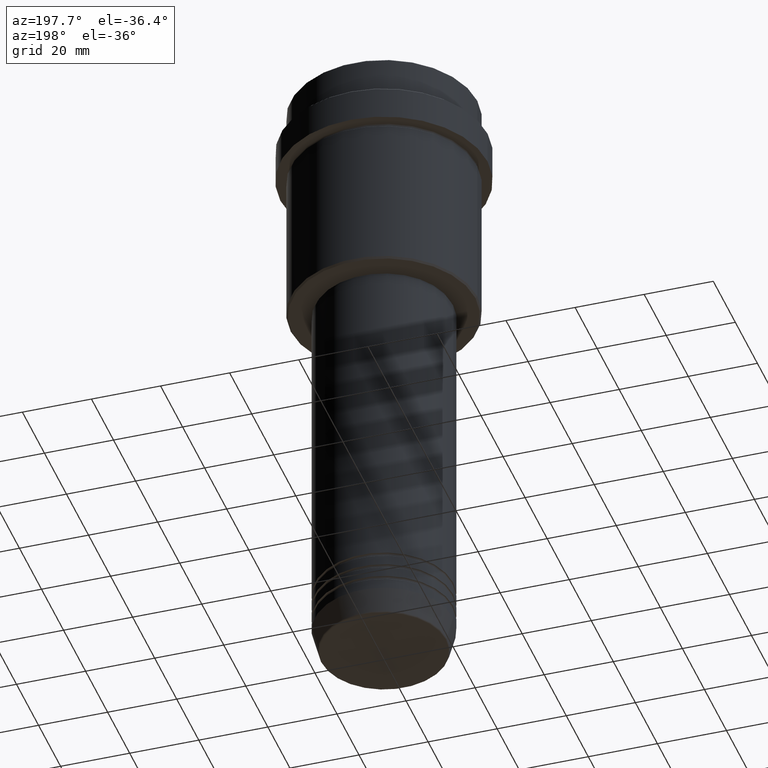
[diagram: clean part render]
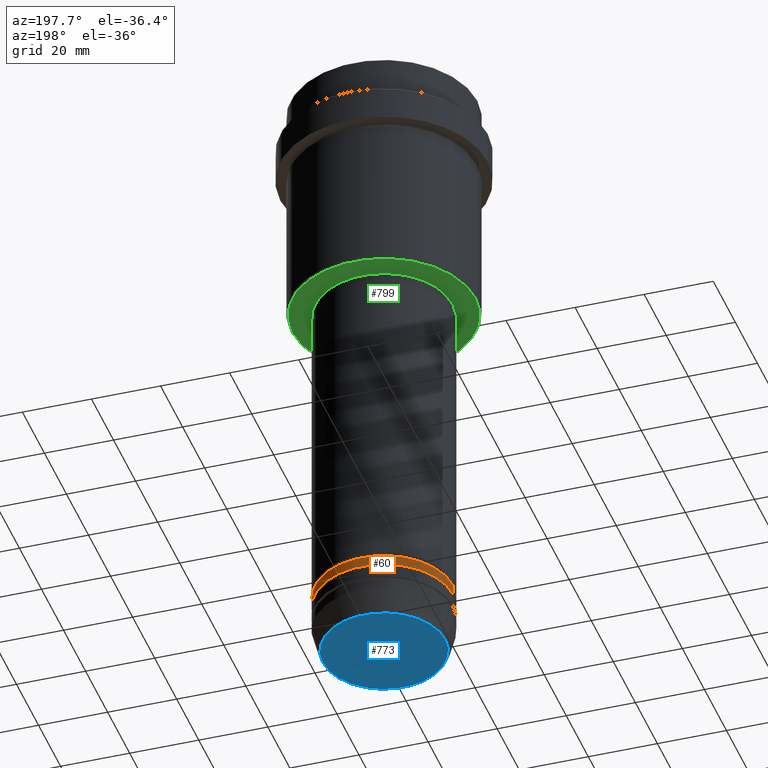
[diagram: same view with three faces highlighted in distinct colors, each labeled with its STEP entity id]
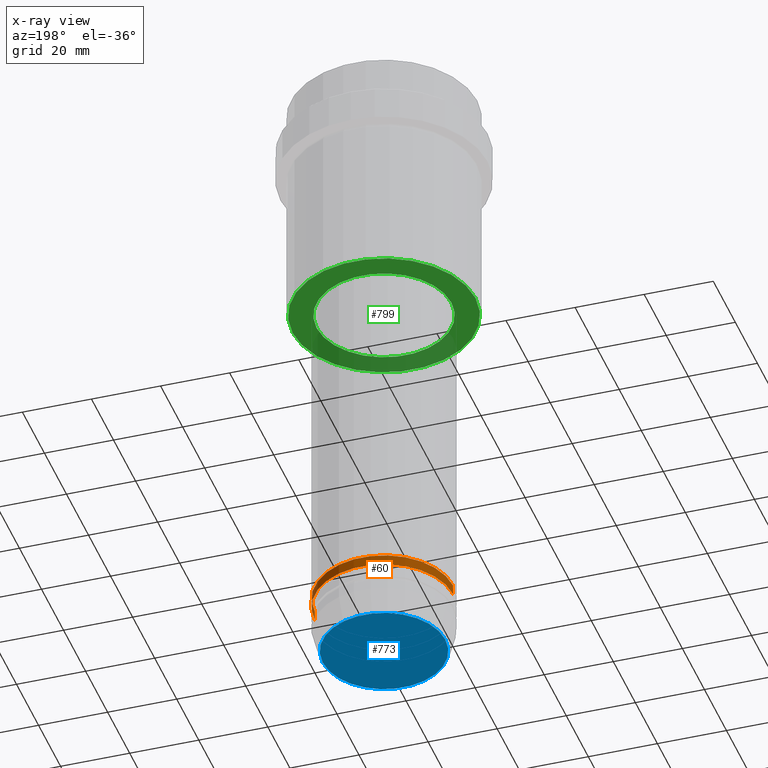
[diagram: x-ray of the same camera — body ghosted, the three highlighted faces saturated]
A machine part, auxiliary view with three faces highlighted in distinct colors.
The next image is the same camera in x-ray (body ghosted, the three faces saturated) — at least one of them is partly hidden behind the body in this view.
Their STEP definitions:

[orange] entity #60 — the highlighted cylindrical surface (partial cylindrical patch) has radius 20 mm, axis along (-0, -0, 1).
#60 = ADVANCED_FACE ( 'NONE', ( #275 ), #1250, .T. ) ;
#86 = ORIENTED_EDGE ( 'NONE', *, *, #923, .T. ) ;
#150 = DIRECTION ( 'NONE',  ( -0.000000000000000000, -0.000000000000000000, 1.000000000000000000 ) ) ;
#207 = EDGE_LOOP ( 'NONE', ( #86, #1096, #550, #602 ) ) ;
#275 = FACE_OUTER_BOUND ( 'NONE', #207, .T. ) ;
#276 = EDGE_CURVE ( 'NONE', #677, #1179, #365, .T. ) ;
#280 = DIRECTION ( 'NONE',  ( -0.000000000000000000, -0.000000000000000000, 1.000000000000000000 ) ) ;
#328 = EDGE_CURVE ( 'NONE', #390, #1001, #834, .T. ) ;
#360 = CARTESIAN_POINT ( 'NONE',  ( -20.00000000000000000, 2.449293598294706513E-15, 0.000000000000000000 ) ) ;
#365 = LINE ( 'NONE', #1257, #1236 ) ;
#390 = VERTEX_POINT ( 'NONE', #756 ) ;
#392 = DIRECTION ( 'NONE',  ( 1.000000000000000000, 0.000000000000000000, 0.000000000000000000 ) ) ;
#448 = VECTOR ( 'NONE', #1263, 1000.000000000000000 ) ;
#479 = DIRECTION ( 'NONE',  ( -0.000000000000000000, -0.000000000000000000, 1.000000000000000000 ) ) ;
#550 = ORIENTED_EDGE ( 'NONE', *, *, #911, .F. ) ;
#580 = CIRCLE ( 'NONE', #1146, 20.00000000000000000 ) ;
#586 = CARTESIAN_POINT ( 'NONE',  ( 0.000000000000000000, 0.000000000000000000, 0.000000000000000000 ) ) ;
#593 = CARTESIAN_POINT ( 'NONE',  ( 20.00000000000000000, 0.000000000000000000, -167.9999999999999147 ) ) ;
#602 = ORIENTED_EDGE ( 'NONE', *, *, #276, .F. ) ;
#620 = CARTESIAN_POINT ( 'NONE',  ( 0.000000000000000000, 0.000000000000000000, -164.9999999999999147 ) ) ;
#634 = DIRECTION ( 'NONE',  ( -0.000000000000000000, -0.000000000000000000, 1.000000000000000000 ) ) ;
#662 = CARTESIAN_POINT ( 'NONE',  ( -20.00000000000000000, 2.449293598294706513E-15, -164.9999999999999147 ) ) ;
#677 = VERTEX_POINT ( 'NONE', #593 ) ;
#707 = AXIS2_PLACEMENT_3D ( 'NONE', #586, #150, #1036 ) ;
#713 = AXIS2_PLACEMENT_3D ( 'NONE', #749, #634, #392 ) ;
#749 = CARTESIAN_POINT ( 'NONE',  ( 0.000000000000000000, 0.000000000000000000, -167.9999999999999147 ) ) ;
#756 = CARTESIAN_POINT ( 'NONE',  ( -20.00000000000000000, 2.449293598294706513E-15, -167.9999999999999147 ) ) ;
#834 = LINE ( 'NONE', #360, #448 ) ;
#902 = CARTESIAN_POINT ( 'NONE',  ( 20.00000000000000000, 0.000000000000000000, -164.9999999999999147 ) ) ;
#911 = EDGE_CURVE ( 'NONE', #1179, #1001, #580, .T. ) ;
#923 = EDGE_CURVE ( 'NONE', #677, #390, #1332, .T. ) ;
#938 = DIRECTION ( 'NONE',  ( 1.000000000000000000, 0.000000000000000000, 0.000000000000000000 ) ) ;
#1001 = VERTEX_POINT ( 'NONE', #662 ) ;
#1036 = DIRECTION ( 'NONE',  ( 1.000000000000000000, 0.000000000000000000, 0.000000000000000000 ) ) ;
#1096 = ORIENTED_EDGE ( 'NONE', *, *, #328, .T. ) ;
#1146 = AXIS2_PLACEMENT_3D ( 'NONE', #620, #280, #938 ) ;
#1179 = VERTEX_POINT ( 'NONE', #902 ) ;
#1236 = VECTOR ( 'NONE', #479, 1000.000000000000000 ) ;
#1250 = CYLINDRICAL_SURFACE ( 'NONE', #707, 20.00000000000000000 ) ;
#1257 = CARTESIAN_POINT ( 'NONE',  ( 20.00000000000000000, 0.000000000000000000, 0.000000000000000000 ) ) ;
#1263 = DIRECTION ( 'NONE',  ( -0.000000000000000000, -0.000000000000000000, 1.000000000000000000 ) ) ;
#1332 = CIRCLE ( 'NONE', #713, 20.00000000000000000 ) ;

[blue] entity #773 — the highlighted planar face has unit normal (0, -0, 1).
#71 = VERTEX_POINT ( 'NONE', #703 ) ;
#498 = CARTESIAN_POINT ( 'NONE',  ( 0.000000000000000000, 0.000000000000000000, -183.0000000000000000 ) ) ;
#519 = ORIENTED_EDGE ( 'NONE', *, *, #623, .T. ) ;
#526 = PLANE ( 'NONE',  #810 ) ;
#584 = CARTESIAN_POINT ( 'NONE',  ( 0.000000000000000000, 0.000000000000000000, -183.0000000000000000 ) ) ;
#603 = DIRECTION ( 'NONE',  ( 0.000000000000000000, 0.000000000000000000, -1.000000000000000000 ) ) ;
#623 = EDGE_CURVE ( 'NONE', #785, #71, #629, .T. ) ;
#629 = CIRCLE ( 'NONE', #1331, 17.74069215899266183 ) ;
#703 = CARTESIAN_POINT ( 'NONE',  ( 17.74069215899266183, 0.000000000000000000, -183.0000000000000000 ) ) ;
#721 = DIRECTION ( 'NONE',  ( 0.000000000000000000, -0.000000000000000000, 1.000000000000000000 ) ) ;
#736 = DIRECTION ( 'NONE',  ( 0.000000000000000000, 0.000000000000000000, -1.000000000000000000 ) ) ;
#750 = FACE_OUTER_BOUND ( 'NONE', #1276, .T. ) ;
#771 = CARTESIAN_POINT ( 'NONE',  ( 0.000000000000000000, 0.000000000000000000, -183.0000000000000000 ) ) ;
#773 = ADVANCED_FACE ( 'NONE', ( #750 ), #526, .F. ) ;
#785 = VERTEX_POINT ( 'NONE', #961 ) ;
#787 = CIRCLE ( 'NONE', #897, 17.74069215899266183 ) ;
#810 = AXIS2_PLACEMENT_3D ( 'NONE', #771, #721, #1193 ) ;
#897 = AXIS2_PLACEMENT_3D ( 'NONE', #584, #603, #1055 ) ;
#961 = CARTESIAN_POINT ( 'NONE',  ( -17.74069215899266183, 2.202181136001357564E-15, -183.0000000000000000 ) ) ;
#1055 = DIRECTION ( 'NONE',  ( 1.000000000000000000, 0.000000000000000000, 0.000000000000000000 ) ) ;
#1060 = DIRECTION ( 'NONE',  ( 1.000000000000000000, 0.000000000000000000, 0.000000000000000000 ) ) ;
#1180 = ORIENTED_EDGE ( 'NONE', *, *, #1243, .T. ) ;
#1193 = DIRECTION ( 'NONE',  ( 1.000000000000000000, 0.000000000000000000, 0.000000000000000000 ) ) ;
#1243 = EDGE_CURVE ( 'NONE', #71, #785, #787, .T. ) ;
#1276 = EDGE_LOOP ( 'NONE', ( #1180, #519 ) ) ;
#1331 = AXIS2_PLACEMENT_3D ( 'NONE', #498, #736, #1060 ) ;

[green] entity #799 — the highlighted planar face has unit normal (0, 0, -1).
#5 = VERTEX_POINT ( 'NONE', #1225 ) ;
#19 = CARTESIAN_POINT ( 'NONE',  ( 26.49999999999996803, 0.000000000000000000, -68.00000000000000000 ) ) ;
#121 = DIRECTION ( 'NONE',  ( -1.000000000000000000, 0.000000000000000000, 0.000000000000000000 ) ) ;
#272 = FACE_BOUND ( 'NONE', #988, .T. ) ;
#384 = VERTEX_POINT ( 'NONE', #1401 ) ;
#407 = EDGE_CURVE ( 'NONE', #1065, #384, #1048, .T. ) ;
#432 = DIRECTION ( 'NONE',  ( 0.000000000000000000, 0.000000000000000000, -1.000000000000000000 ) ) ;
#455 = EDGE_CURVE ( 'NONE', #384, #1065, #1392, .T. ) ;
#496 = ORIENTED_EDGE ( 'NONE', *, *, #407, .T. ) ;
#501 = DIRECTION ( 'NONE',  ( 0.000000000000000000, 0.000000000000000000, -1.000000000000000000 ) ) ;
#502 = PLANE ( 'NONE',  #1237 ) ;
#533 = CARTESIAN_POINT ( 'NONE',  ( 0.000000000000000000, 0.000000000000000000, -68.00000000000000000 ) ) ;
#616 = ORIENTED_EDGE ( 'NONE', *, *, #455, .T. ) ;
#667 = DIRECTION ( 'NONE',  ( 1.000000000000000000, 0.000000000000000000, 0.000000000000000000 ) ) ;
#675 = ORIENTED_EDGE ( 'NONE', *, *, #708, .T. ) ;
#680 = DIRECTION ( 'NONE',  ( -0.000000000000000000, -0.000000000000000000, 1.000000000000000000 ) ) ;
#685 = AXIS2_PLACEMENT_3D ( 'NONE', #1335, #680, #1008 ) ;
#708 = EDGE_CURVE ( 'NONE', #5, #934, #1255, .T. ) ;
#733 = AXIS2_PLACEMENT_3D ( 'NONE', #533, #987, #667 ) ;
#768 = DIRECTION ( 'NONE',  ( 0.000000000000000000, 0.000000000000000000, -1.000000000000000000 ) ) ;
#799 = ADVANCED_FACE ( 'NONE', ( #831, #272 ), #502, .T. ) ;
#831 = FACE_OUTER_BOUND ( 'NONE', #1294, .T. ) ;
#869 = AXIS2_PLACEMENT_3D ( 'NONE', #966, #501, #1405 ) ;
#934 = VERTEX_POINT ( 'NONE', #1283 ) ;
#966 = CARTESIAN_POINT ( 'NONE',  ( 0.000000000000000000, 0.000000000000000000, -68.00000000000000000 ) ) ;
#987 = DIRECTION ( 'NONE',  ( -0.000000000000000000, -0.000000000000000000, 1.000000000000000000 ) ) ;
#988 = EDGE_LOOP ( 'NONE', ( #675, #1117 ) ) ;
#991 = DIRECTION ( 'NONE',  ( -1.000000000000000000, 0.000000000000000000, -0.000000000000000000 ) ) ;
#997 = CARTESIAN_POINT ( 'NONE',  ( 0.000000000000000000, 0.000000000000000000, -68.00000000000000000 ) ) ;
#1008 = DIRECTION ( 'NONE',  ( 1.000000000000000000, 0.000000000000000000, 0.000000000000000000 ) ) ;
#1048 = CIRCLE ( 'NONE', #869, 26.49999999999996803 ) ;
#1065 = VERTEX_POINT ( 'NONE', #19 ) ;
#1117 = ORIENTED_EDGE ( 'NONE', *, *, #1212, .T. ) ;
#1212 = EDGE_CURVE ( 'NONE', #934, #5, #1366, .T. ) ;
#1225 = CARTESIAN_POINT ( 'NONE',  ( 19.50000000000000000, 0.000000000000000000, -68.00000000000000000 ) ) ;
#1237 = AXIS2_PLACEMENT_3D ( 'NONE', #1397, #432, #991 ) ;
#1255 = CIRCLE ( 'NONE', #733, 19.50000000000000000 ) ;
#1279 = AXIS2_PLACEMENT_3D ( 'NONE', #997, #768, #121 ) ;
#1283 = CARTESIAN_POINT ( 'NONE',  ( -19.50000000000000000, 2.388061258337338939E-15, -68.00000000000000000 ) ) ;
#1294 = EDGE_LOOP ( 'NONE', ( #496, #616 ) ) ;
#1335 = CARTESIAN_POINT ( 'NONE',  ( 0.000000000000000000, 0.000000000000000000, -68.00000000000000000 ) ) ;
#1366 = CIRCLE ( 'NONE', #685, 19.50000000000000000 ) ;
#1392 = CIRCLE ( 'NONE', #1279, 26.49999999999996803 ) ;
#1397 = CARTESIAN_POINT ( 'NONE',  ( 0.000000000000000000, 27.00000000000000000, -68.00000000000000000 ) ) ;
#1401 = CARTESIAN_POINT ( 'NONE',  ( -26.49999999999996803, 3.275930187719167580E-15, -68.00000000000000000 ) ) ;
#1405 = DIRECTION ( 'NONE',  ( -1.000000000000000000, 0.000000000000000000, 0.000000000000000000 ) ) ;